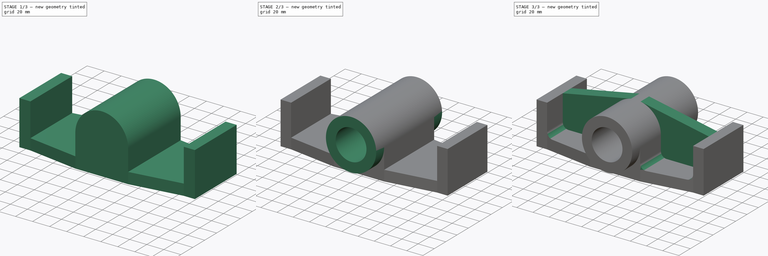
[diagram: build sequence overview — one tinted view per stage of 3, left to right]
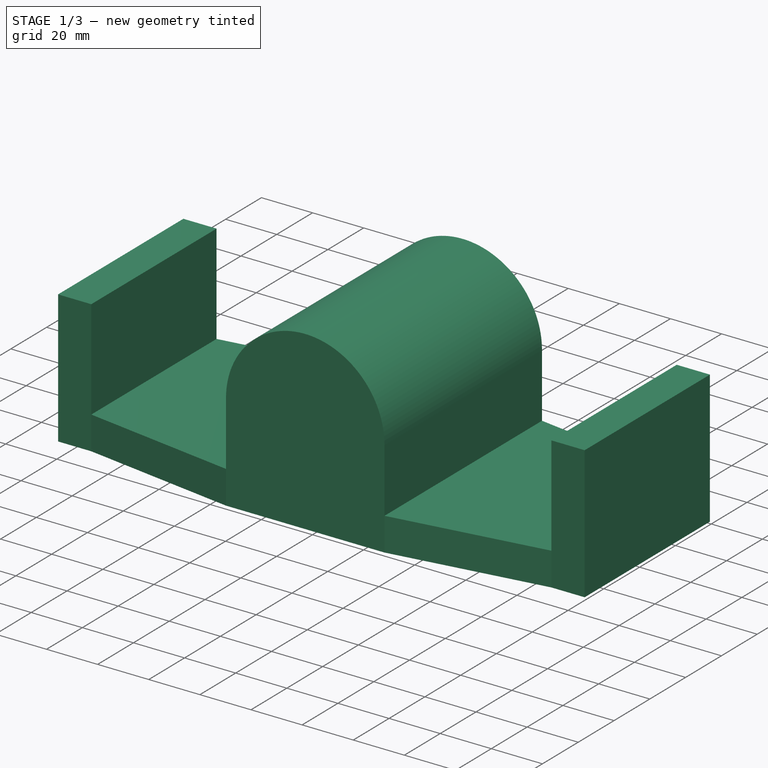
[diagram: stage 1 of 3 — iso view after this stage's code; geometry added in this stage tinted green]
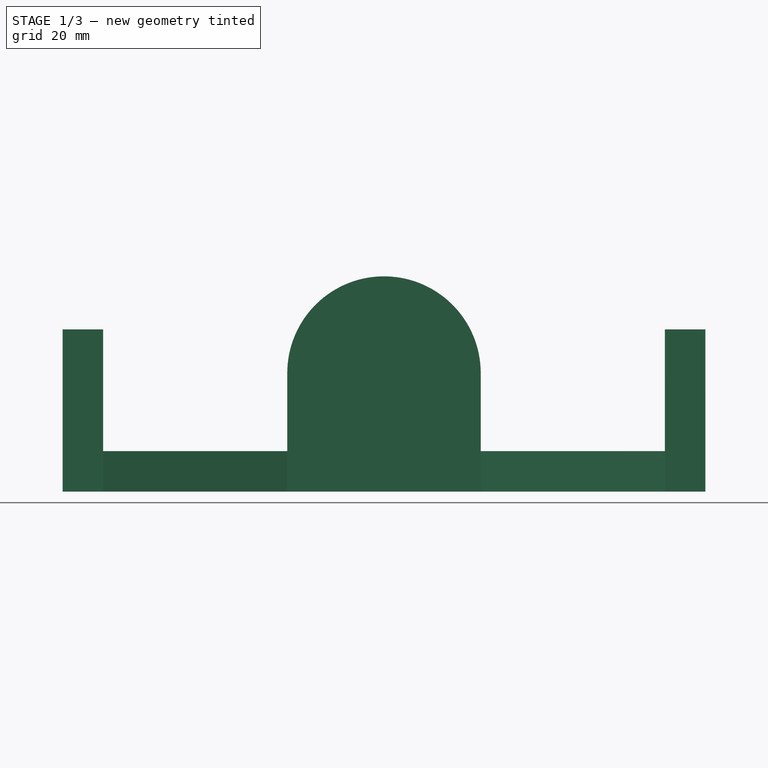
[diagram: stage 1 of 3 — front view after this stage's code; geometry added in this stage tinted green]
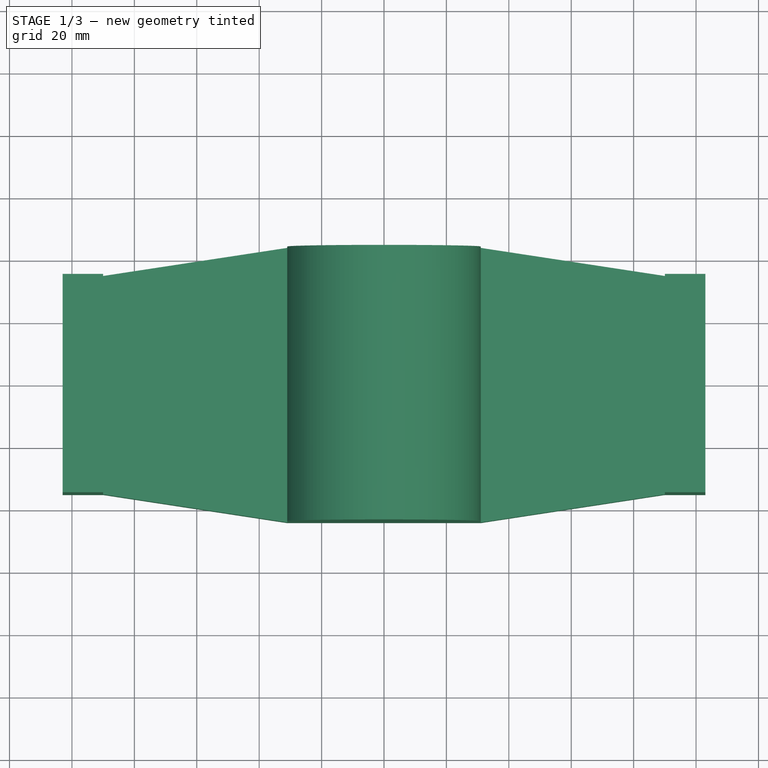
[diagram: stage 1 of 3 — top view after this stage's code; geometry added in this stage tinted green]
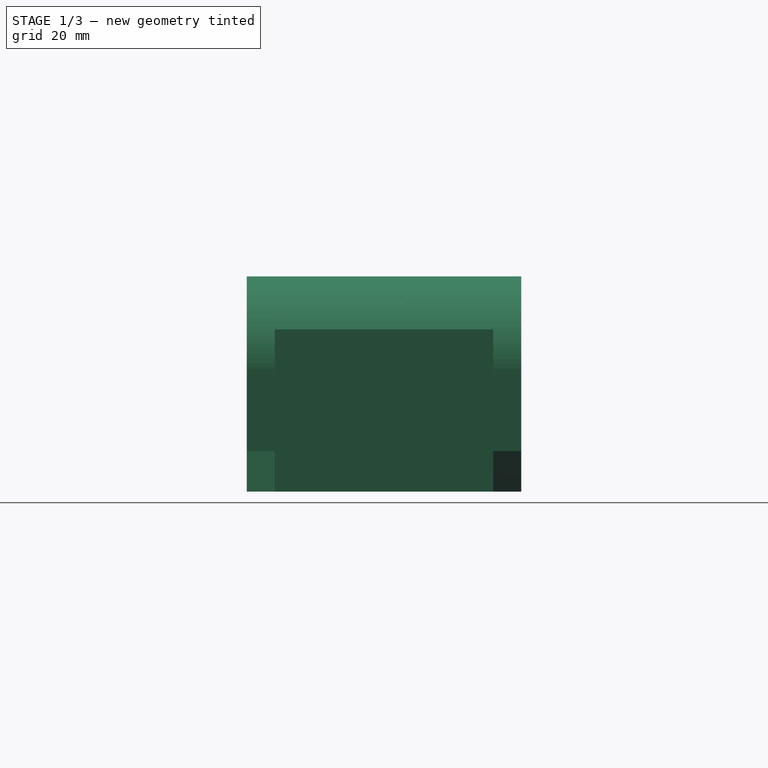
[diagram: stage 1 of 3 — right view after this stage's code; geometry added in this stage tinted green]
FCSTD DOCUMENT  (FreeCAD 1.1R42721 (Git))
Label: 24-SPO-36-TRUSS_BEARING
License: Creative Commons Attribution-NonCommercial-ShareAlike 4.0
LicenseURL: https://creativecommons.org/licenses/by-nc-sa/4.0/
objects: Sketcher::SketchObject×4, PartDesign::Pad×4, App::Point×1, PartDesign::Thickness×1, PartDesign::Hole×1, PartDesign::Fillet×1, PartDesign::Mirrored×1, PartDesign::Body×1, App::TextDocument×1
note: 32 computed .brp shape members not serialized (recipe doc carries the construction recipe); baked Part::Feature solids carry a one-line shape summary decoded from their .brp

FEATURE [App::Point] Origin001
  Role = Origin
FEATURE [Sketcher::SketchObject] Sketch
  ArcFitTolerance = 1e-06
  AttachmentSupport = -> [Origin]
  ExternalTypes = [0]
  FullyConstrained = true
  MakeInternals = false
  MapMode = 5
  sketch-geometry (12):
    g0: LineSegment StartX=-103 StartY=35 StartZ=0 EndX=-103 EndY=-35 EndZ=0
    g1: LineSegment StartX=-103 StartY=-35 StartZ=0 EndX=-90 EndY=-35 EndZ=0
    g2: LineSegment StartX=-90 StartY=-35 StartZ=0 EndX=-31 EndY=-44 EndZ=0
    g3: LineSegment StartX=-31 StartY=-44 StartZ=0 EndX=31 EndY=-44 EndZ=0
    g4: LineSegment StartX=31 StartY=-44 StartZ=0 EndX=90 EndY=-35 EndZ=0
    g5: LineSegment StartX=90 StartY=-35 StartZ=0 EndX=103 EndY=-35 EndZ=0
    g6: LineSegment StartX=103 StartY=-35 StartZ=0 EndX=103 EndY=35 EndZ=0
    g7: LineSegment StartX=103 StartY=35 StartZ=0 EndX=90 EndY=35 EndZ=0
    g8: LineSegment StartX=90 StartY=35 StartZ=0 EndX=31 EndY=44 EndZ=0
    g9: LineSegment StartX=31 StartY=44 StartZ=0 EndX=-31 EndY=44 EndZ=0
    g10: LineSegment StartX=-31 StartY=44 StartZ=0 EndX=-90 EndY=35 EndZ=0
    g11: LineSegment StartX=-90 StartY=35 StartZ=0 EndX=-103 EndY=35 EndZ=0
  constraints (31):
    c: Vertical(g0)
    c: Coincident(g0,g1)
    c: Horizontal(g1)
    c: Coincident(g1,g2)
    c: Coincident(g2,g3)
    c: Coincident(g3,g4)
    c: Coincident(g4,g5)
    c: Horizontal(g5)
    c: Coincident(g5,g6)
    c: Vertical(g6)
    c: Coincident(g6,g7)
    c: Horizontal(g7)
    c: Coincident(g7,g8)
    c: Coincident(g8,g9)
    c: Coincident(g9,g10)
    c: Coincident(g10,g11)
    c: Coincident(g11,g0)
    c: Horizontal(g11)
    c: Symmetric(g9,g2,g-1)
    c: Symmetric(g8,g2,g-1)
    c: Symmetric(g4,g10,g-1)
    c: Symmetric(g0,g6,g-1)
    c: Distance(g6,g6) = 70
    c: DistanceX(g9,g9) = 62
    c: DistanceX(g0,g5) = 206
    c: Symmetric(g3,g2,g-2)
    c: Equal(g4,g2)
    c: Equal(g2,g8)
    c: Equal(g11,g7)
    c: Distance(g11,g11) = 13
    c: DistanceY(g10,g9) = 9
FEATURE [PartDesign::Pad] Pad
  Direction = (0,0,1)
  Length = 52
  Length2 = 10
  Profile = -> Sketch
  ReferenceAxis = -> Sketch [N_Axis]
  Refine = true
  Suppressed = false
  Type = 0
FEATURE [PartDesign::Thickness] Thickness
  Base = -> Pad [Face14,Face6,Face5,Face4,Face3,Face2,Face8,Face9,Face10,Face11,Face12]
  BaseFeature = -> Pad
  Intersection = true
  Join = 1
  Mode = 0
  Refine = true
  Reversed = true
  SupportTransform = false
  Suppressed = false
  Value = 12.99
FEATURE [Sketcher::SketchObject] Sketch001
  ArcFitTolerance = 1e-06
  AttachmentSupport = -> [Thickness]
  ExternalGeometry = -> [Thickness]
  ExternalTypes = [0]
  FullyConstrained = true
  MakeInternals = false
  MapMode = 5
  Placement = pos=(0,-44,0) rot=(1,0,0;1.5708rad)
  sketch-geometry (4):
    g0: LineSegment StartX=-31 StartY=12.99 StartZ=0 EndX=-31 EndY=38 EndZ=0
    g1: ArcOfCircle CenterX=-1.7e-15 CenterY=38 CenterZ=0 NormalX=0 NormalY=0 NormalZ=1 AngleXU=0 Radius=31 StartAngle=2e-16 EndAngle=3.14159
    g2: LineSegment StartX=31 StartY=38 StartZ=0 EndX=31 EndY=12.99 EndZ=0
    g3: GeomPoint X=0 Y=69 Z=0
  constraints (9):
    c: Coincident(g-3,g0)
    c: Vertical(g0)
    c: Tangent(g0,g1) = 1.5708
    c: Tangent(g1,g2) = 1.5708
    c: Coincident(g2,g-3)
    c: Vertical(g2)
    c: PointOnObject(g3,g1)
    c: DistanceY(g-1,g3) = 69
    c: PointOnObject(g3,g-2)
FEATURE [PartDesign::Pad] Pad001
  BaseFeature = -> Thickness
  Direction = (0,-1,0)
  Length = 10
  Length2 = 10
  Profile = -> Sketch001
  ReferenceAxis = -> Sketch001 [N_Axis]
  Refine = true
  Suppressed = false
  Type = 3
  UpToFace = -> Thickness [Face13]
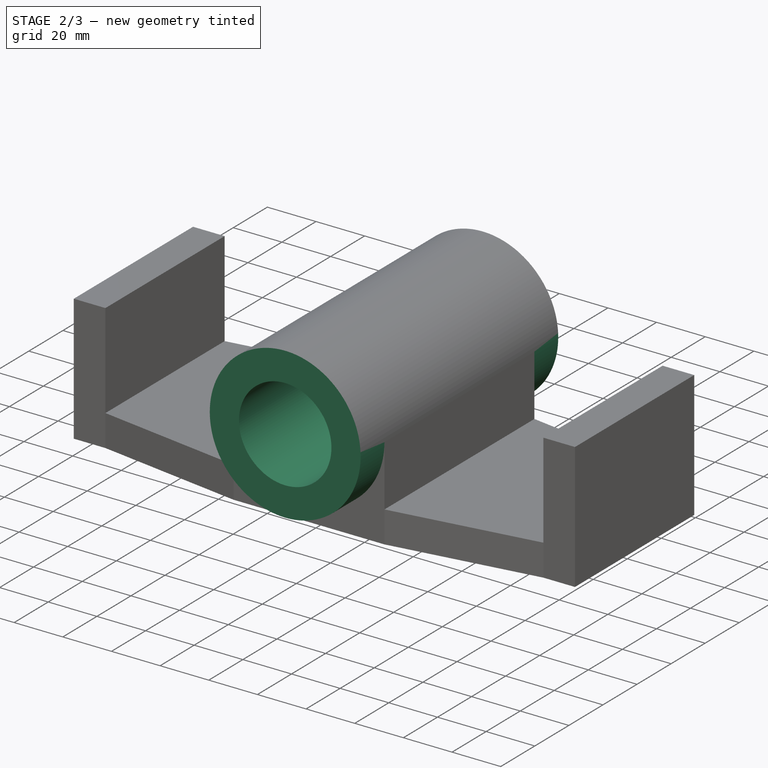
[diagram: stage 2 of 3 — iso view after this stage's code; geometry added in this stage tinted green]
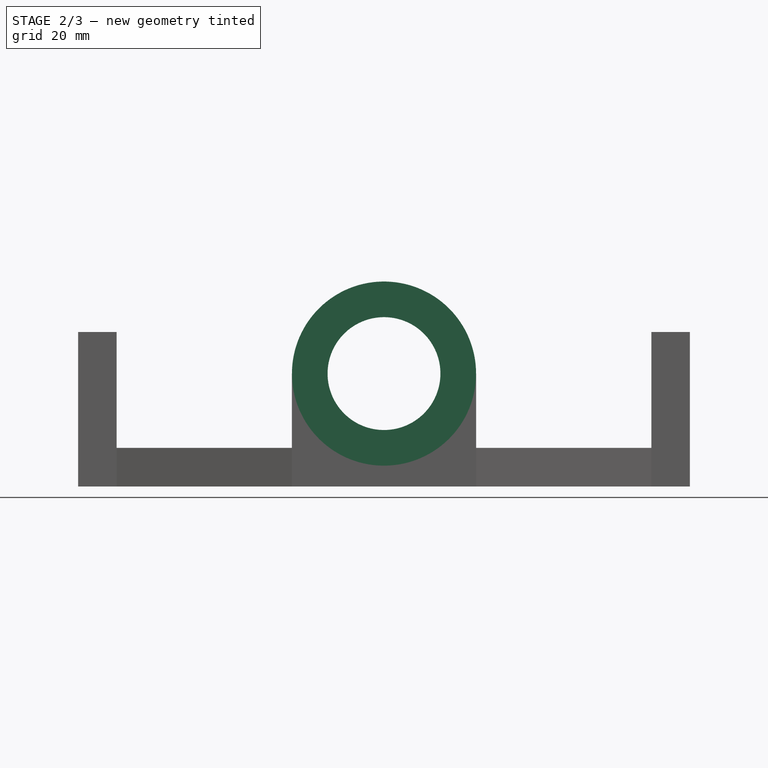
[diagram: stage 2 of 3 — front view after this stage's code; geometry added in this stage tinted green]
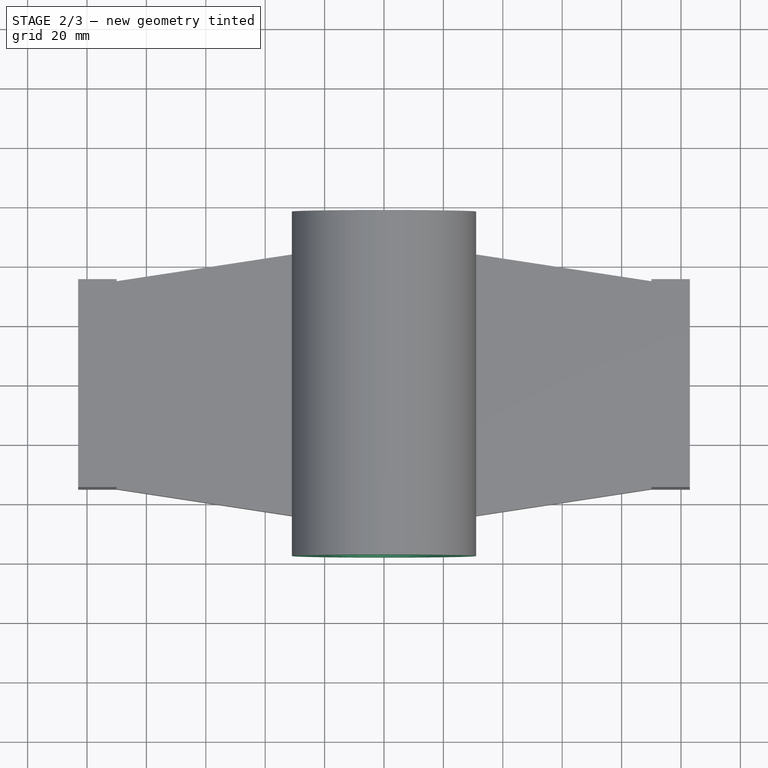
[diagram: stage 2 of 3 — top view after this stage's code; geometry added in this stage tinted green]
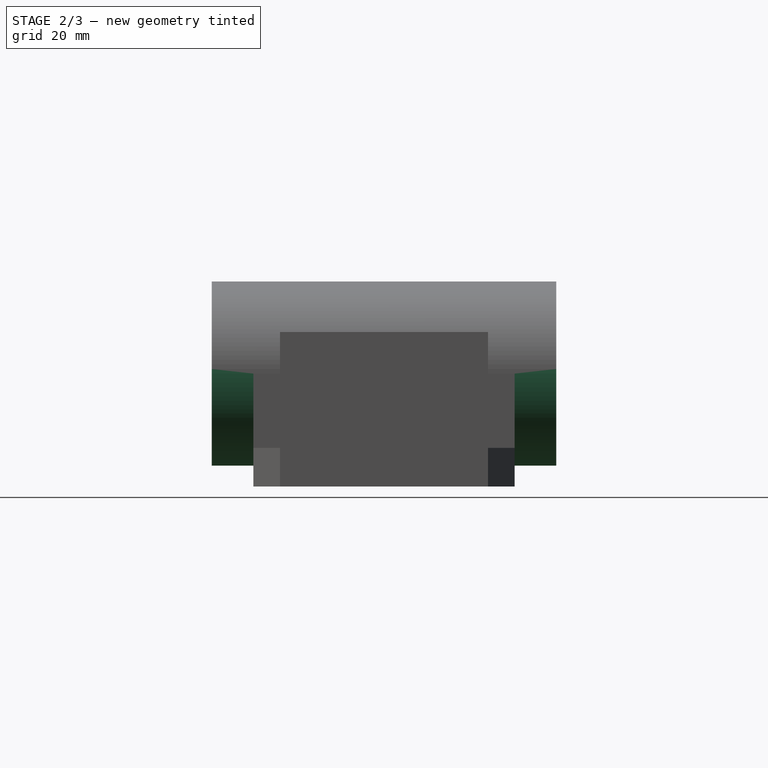
[diagram: stage 2 of 3 — right view after this stage's code; geometry added in this stage tinted green]
FEATURE [Sketcher::SketchObject] Sketch002
  ArcFitTolerance = 1e-06
  AttachmentSupport = -> [Origin]
  ExternalGeometry = -> [Pad001]
  ExternalTypes = [0]
  FullyConstrained = true
  MakeInternals = false
  MapMode = 5
  Placement = pos=(0,0,0) rot=(1,0,0;1.5708rad)
  sketch-geometry (1):
    g0: Circle CenterX=-1.7e-15 CenterY=38 CenterZ=0 NormalX=0 NormalY=0 NormalZ=1 AngleXU=0 Radius=31
  constraints (2):
    c: Coincident(g0,g-3)
    c: PointOnObject(g-3,g0)
FEATURE [PartDesign::Pad] Pad002
  BaseFeature = -> Pad001
  Direction = (0,-1,0)
  Length = 116
  Length2 = 10
  Midplane = true
  Profile = -> Sketch002
  ReferenceAxis = -> Sketch002 [N_Axis]
  Refine = true
  Suppressed = false
  Type = 0
FEATURE [PartDesign::Hole] Hole
  BaseFeature = -> Pad002
  BaseProfileType = 7
  CustomThreadClearance = 0
  Depth = 497.48
  DepthType = 1
  Diameter = 38
  DrillForDepth = false
  DrillPoint = 1
  DrillPointAngle = 118
  HoleCutCountersinkAngle = 90
  HoleCutCustomValues = false
  HoleCutDepth = 0
  HoleCutDiameter = 0
  HoleCutType = 0
  ModelThread = false
  Profile = -> Pad002 [Face24]
  Refine = true
  Suppressed = false
  Tapered = false
  TaperedAngle = 90
  ThreadClass = 0
  ThreadDepth = 497.48
  ThreadDepthType = 0
  ThreadDiameter = 38
  ThreadDirection = 0
  ThreadFit = 0
  ThreadSize = 0
  ThreadType = 0
  Threaded = false
  UseCustomThreadClearance = false
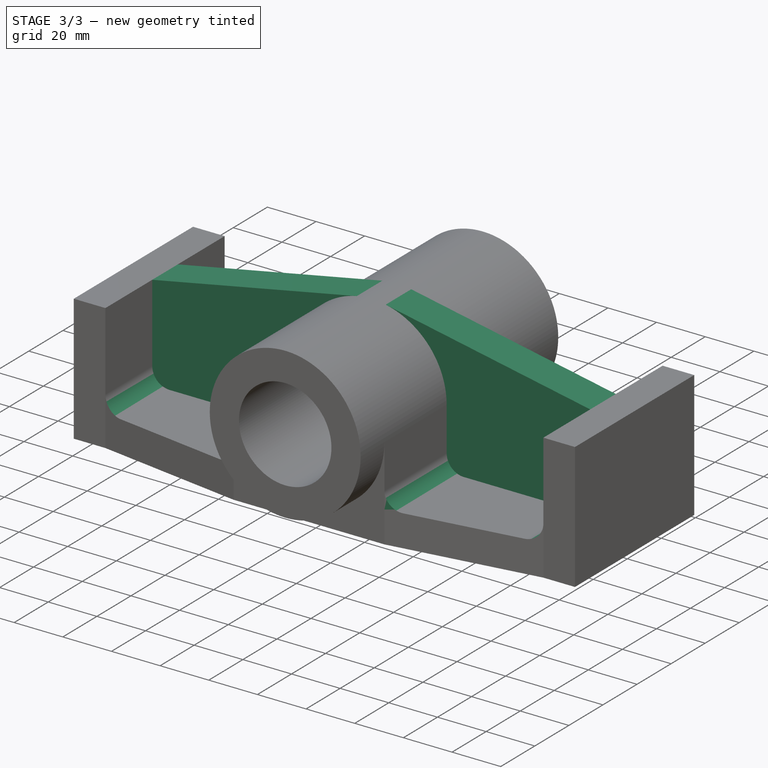
[diagram: stage 3 of 3 — iso view after this stage's code; geometry added in this stage tinted green]
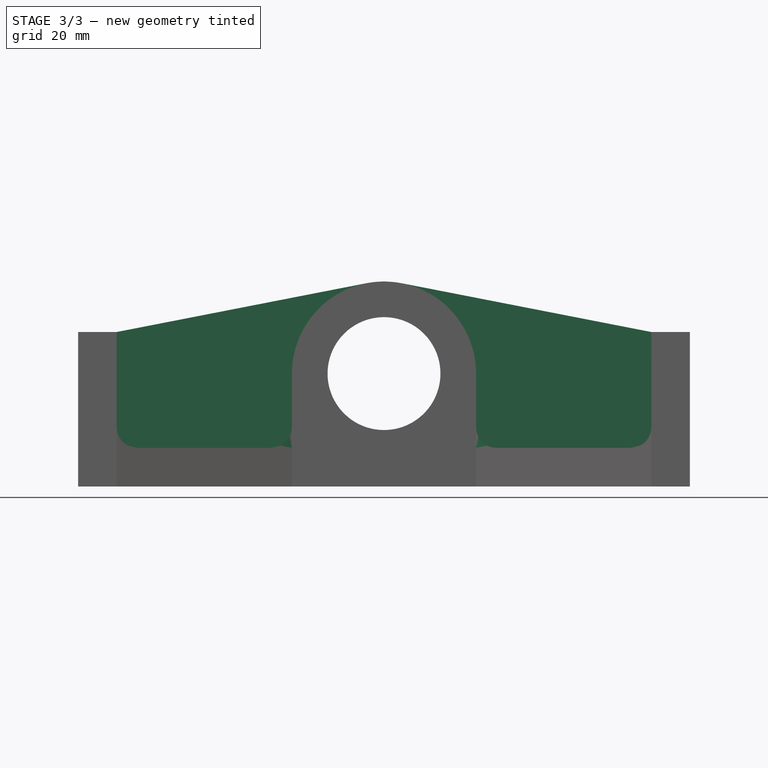
[diagram: stage 3 of 3 — front view after this stage's code; geometry added in this stage tinted green]
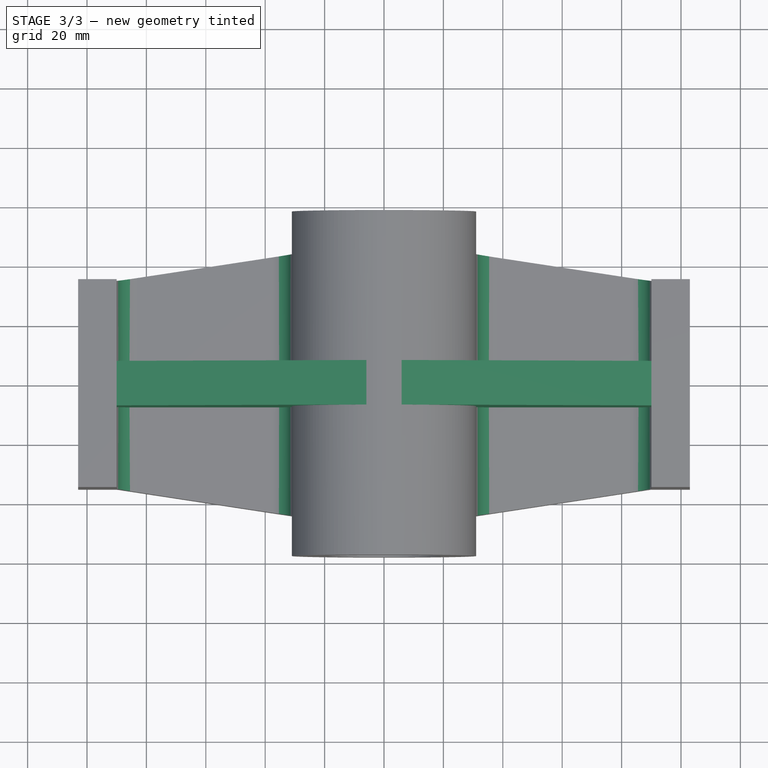
[diagram: stage 3 of 3 — top view after this stage's code; geometry added in this stage tinted green]
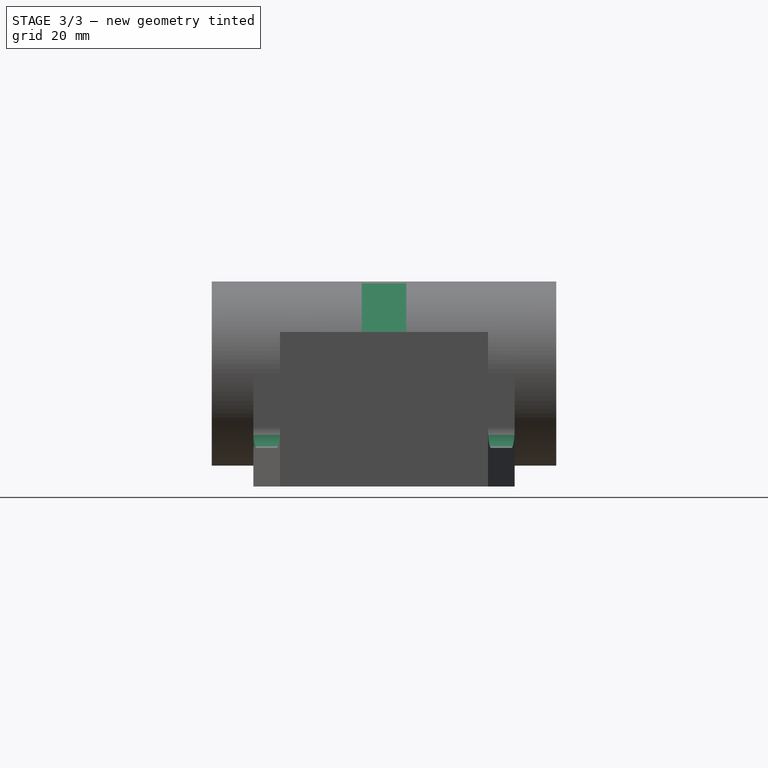
[diagram: stage 3 of 3 — right view after this stage's code; geometry added in this stage tinted green]
FEATURE [PartDesign::Fillet] Fillet
  Base = -> Hole [Edge29,Edge27,Edge59,Edge58]
  BaseFeature = -> Hole
  Radius = 7
  Refine = true
  SupportTransform = false
  Suppressed = false
  UseAllEdges = false
FEATURE [Sketcher::SketchObject] Sketch003
  ArcFitTolerance = 1e-06
  AttachmentSupport = -> [Origin]
  ExternalGeometry = -> [Fillet]
  ExternalTypes = [0,0,0,0]
  FullyConstrained = true
  MakeInternals = false
  MapMode = 5
  Placement = pos=(0,0,0) rot=(1,0,0;1.5708rad)
  sketch-geometry (5):
    g0: LineSegment StartX=90.01 StartY=52 StartZ=0 EndX=90.01 EndY=12.99 EndZ=0
    g1: LineSegment StartX=90.01 StartY=12.99 StartZ=0 EndX=31 EndY=12.99 EndZ=0
    g2: LineSegment StartX=31 StartY=12.99 StartZ=0 EndX=31 EndY=38 EndZ=0
    g3: ArcOfCircle CenterX=1.17e-14 CenterY=38 CenterZ=0 NormalX=0 NormalY=0 NormalZ=1 AngleXU=0 Radius=31 StartAngle=0 EndAngle=1.37785
    g4: LineSegment StartX=5.94443 StartY=68.4247 StartZ=0 EndX=90.01 EndY=52 EndZ=0
  constraints (13):
    c: Coincident(g-6,g0)
    c: Coincident(g0,g1)
    c: Horizontal(g1)
    c: Coincident(g1,g2)
    c: Coincident(g2,g-4)
    c: Tangent(g2,g3) = -1.5708
    c: PointOnObject(g3,g-3)
    c: Coincident(g3,g4)
    c: Coincident(g4,g0)
    c: PointOnObject(g-6,g0)
    c: PointOnObject(g-4,g2)
    c: PointOnObject(g-5,g1)
    c: Tangent(g4,g-3)
FEATURE [PartDesign::Pad] Pad003
  BaseFeature = -> Fillet
  Direction = (0,-1,0)
  Length = 15
  Length2 = 10
  Midplane = true
  Profile = -> Sketch003
  ReferenceAxis = -> Sketch003 [N_Axis]
  Refine = true
  Suppressed = false
  Type = 0
FEATURE [PartDesign::Mirrored] Mirrored
  BaseFeature = -> Pad003
  MirrorPlane = -> Sketch003 [V_Axis]
  Originals = -> [Pad003]
  Refine = true
  Suppressed = false
  TransformMode = 0
FEATURE [PartDesign::Body] Body
  AllowCompound = true
  Group = -> [Sketch,Pad,Thickness,Sketch001,Pad001,Sketch002,Pad002,Hole,Fillet,Sketch003,Pad003,Mirrored]
  Origin = -> Origin
  Tip = -> Mirrored
FEATURE [App::TextDocument] Text_document  label="README"
  Text = 2700 kg/m3\n\n1.6056kg
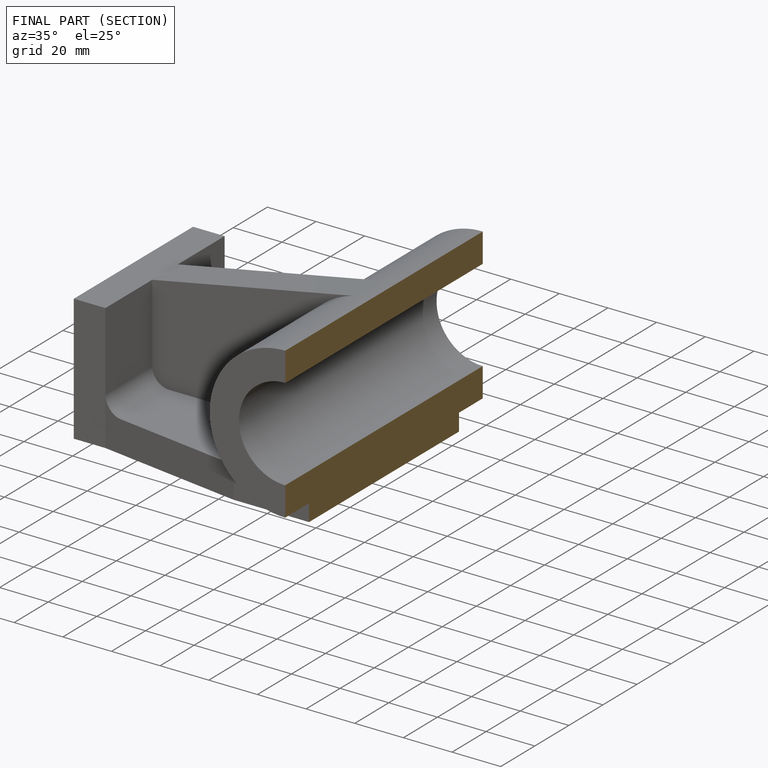
[diagram: finished part — half-section view (interior)]
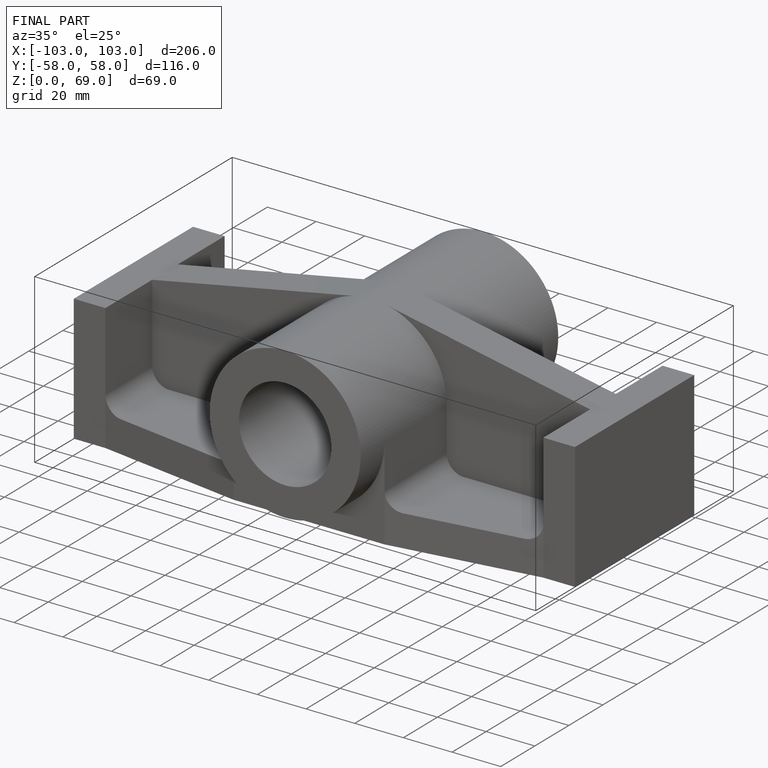
[diagram: finished part — iso view with bounding-box wireframe]
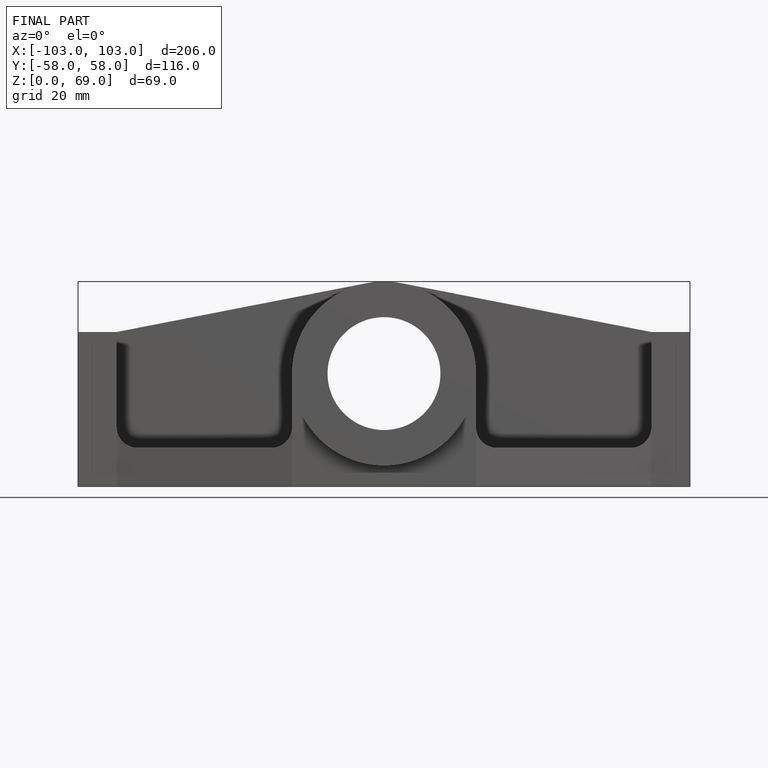
[diagram: finished part — front view with bounding-box wireframe]
